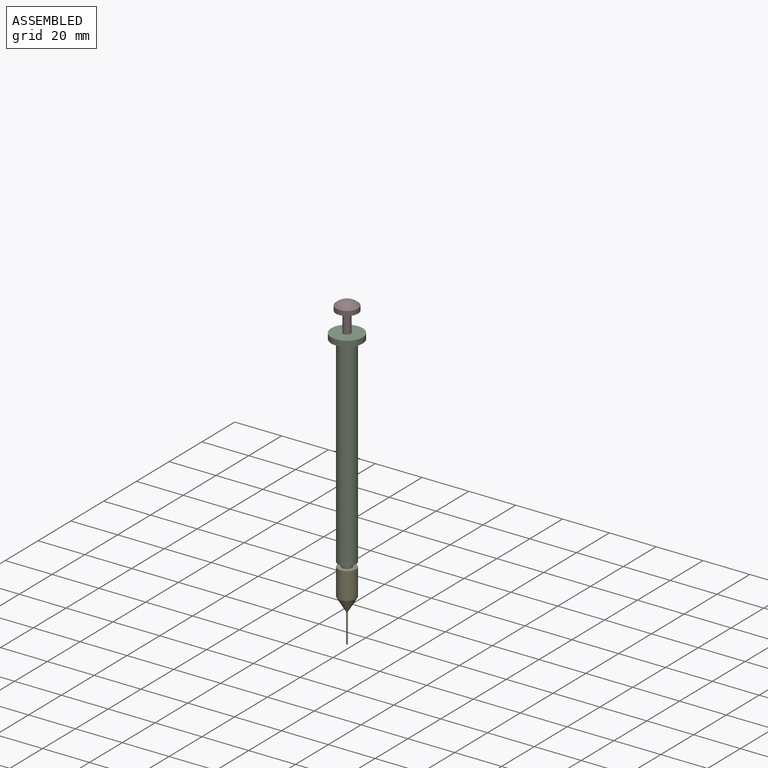
[diagram: assembled view]
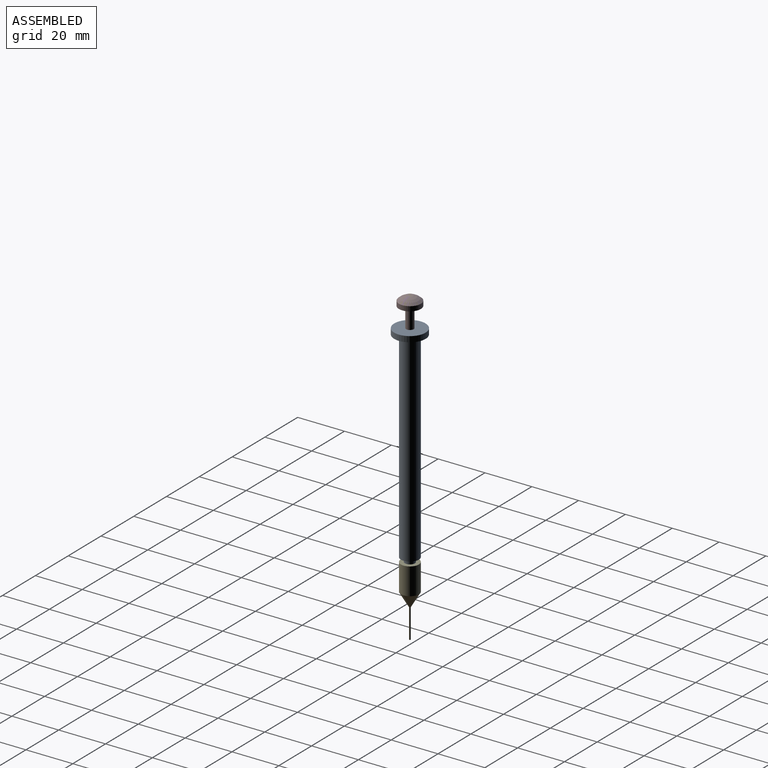
[diagram: assembled view, second angle]
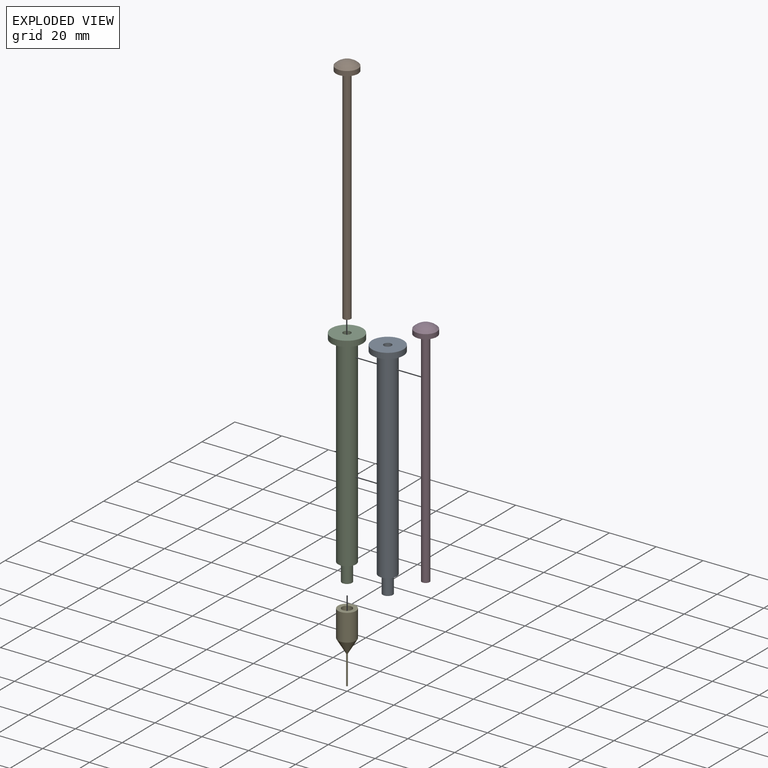
[diagram: exploded view]
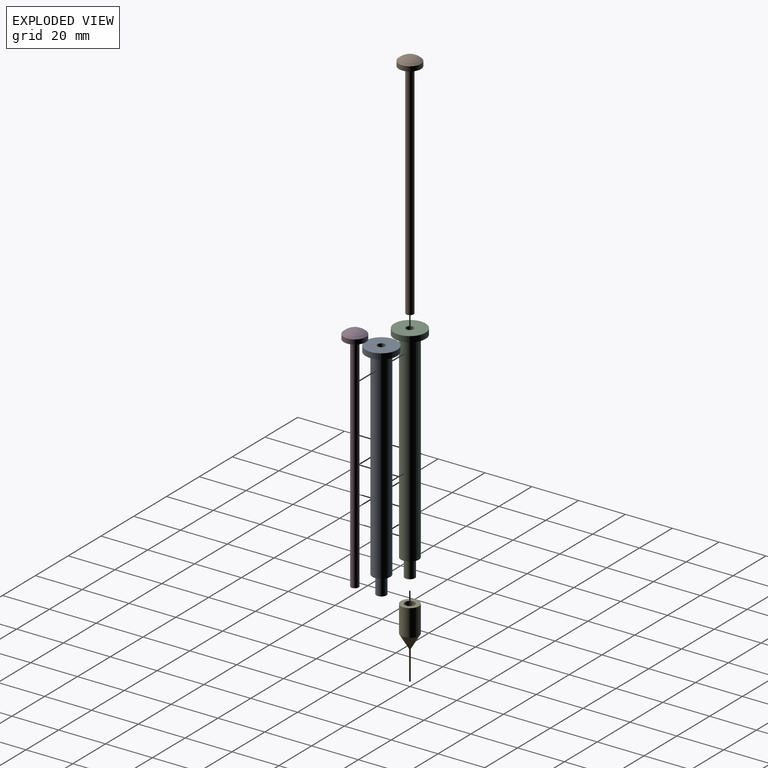
[diagram: exploded view, second angle]
ASSEMBLY  parts=5 mates=2
PART A: 10 faces, bbox 13.4x13.4x96 mm
  f0: cylinder r=0.25mm len=9.12mm, axis (0,0,1), area 14.3mm2, adj f1,f9
  f1: plane 3.25x3.25mm, normal (0,0,1), area 8.1mm2, adj f0,f2
  f2: cylinder r=1.62mm len=86.88mm, axis (0,0,1), area 887.1mm2, adj f1,f3
  f3: plane 13.4x13.4mm, normal (0,0,1), area 132.7mm2, adj f2,f4
  f4: cylinder r=6.7mm len=13.4mm, axis (0,0,1), area 101mm2, adj f3,f5
  f5: plane 13.4x13.4mm, normal (0,0,-1), area 94.7mm2, adj f4,f6
  f6: cylinder r=3.84mm len=85.98mm, axis (0,0,1), area 2074.5mm2, adj f5,f7
  f7: plane 7.68x7.68mm, normal (0,0,-1), area 31.8mm2, adj f6,f8
  f8: cylinder r=2.15mm len=7.62mm, axis (0,0,1), area 102.9mm2, adj f7,f9
  f9: plane 4.3x4.3mm, normal (0,0,-1), area 14.3mm2, adj f0,f8
PART B: 5 faces, bbox 9.4x9.4x99.5 mm
  f0: cylinder r=1.62mm len=95.5mm, axis (0,0,1), area 975.1mm2, adj f1,f4
  f1: plane 3.25x3.25mm, normal (0,0,-1), area 8.3mm2, adj f0
  f2: sphere r=6.52mm, area 82mm2, adj f3
  f3: cylinder r=4.7mm len=9.4mm, axis (0,0,1), area 59.1mm2, adj f2,f4
  f4: plane 9.4x9.4mm, normal (0,0,-1), area 61.1mm2, adj f0,f3
PART C: same geometry as A
PART D: same geometry as B
PART E: 7 faces, bbox 7.7x7.7x30 mm
  f0: cylinder r=2.15mm len=5.62mm, axis (0,0,1), area 75.9mm2, adj f1,f6
  f1: plane 7.68x7.68mm, normal (0,0,1), area 31.8mm2, adj f0,f2
  f2: cylinder r=3.84mm len=11.5mm, axis (0,0,1), area 277.5mm2, adj f1,f3
  f3: cone r=3.84mm half-angle=30.5deg, axis (0,0,1), area 90.6mm2, adj f2,f4
  f4: cylinder r=0.3mm len=12.5mm, axis (0,0,1), area 23.6mm2, adj f3,f5
  f5: plane 0.6x0.6mm, normal (0,0,-1), area 0.3mm2, adj f4
  f6: plane 4.3x4.3mm, normal (0,0,1), area 14.5mm2, adj f0
PLACE A at identity
PLACE B rot(axis=(0,0,-1),143.5deg) t=(0,0,0)mm
PLACE C at identity fixed
PLACE D at identity
PLACE E t=(0,0,0.13)mm
MATE fastened E.f0 <-> C.f0  axis (0,0,1) through (0,0,-96)mm
MATE cylindrical B.f0 <-> C.f0  axis (0,0,1) through (0,0,-86.88)mm
